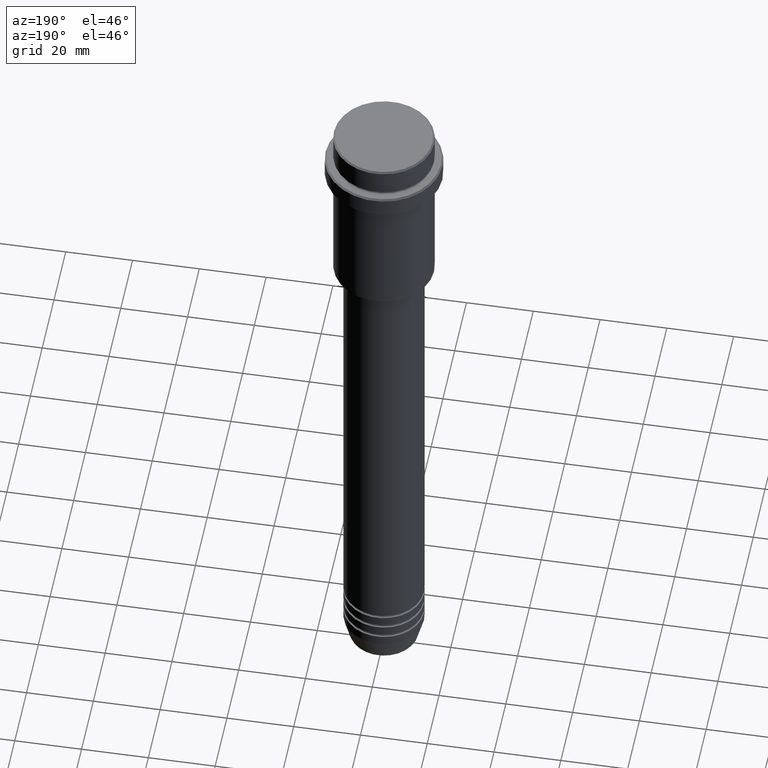
[diagram: clean part render]
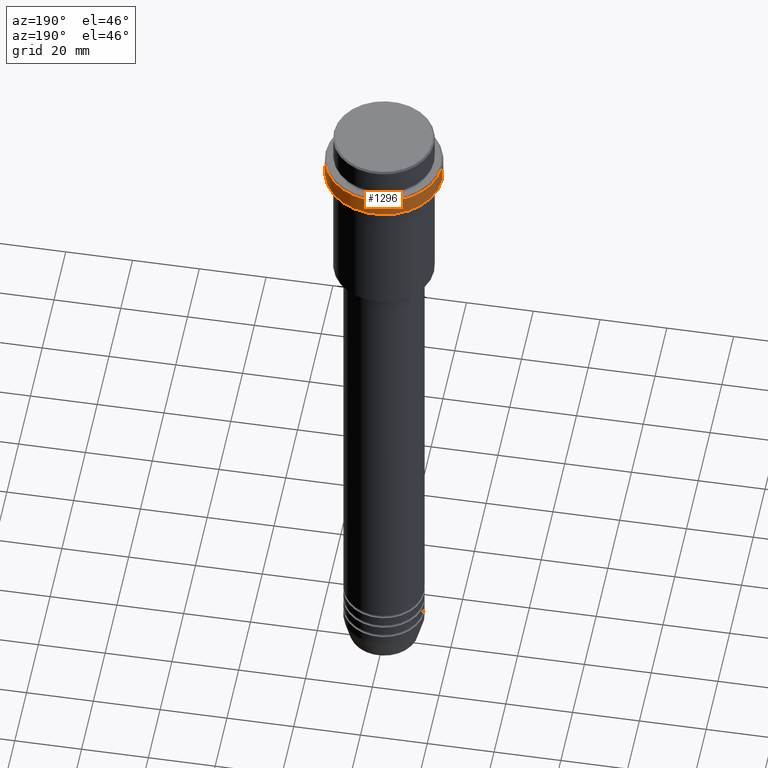
[diagram: same view with one face highlighted and labeled with its STEP entity id]
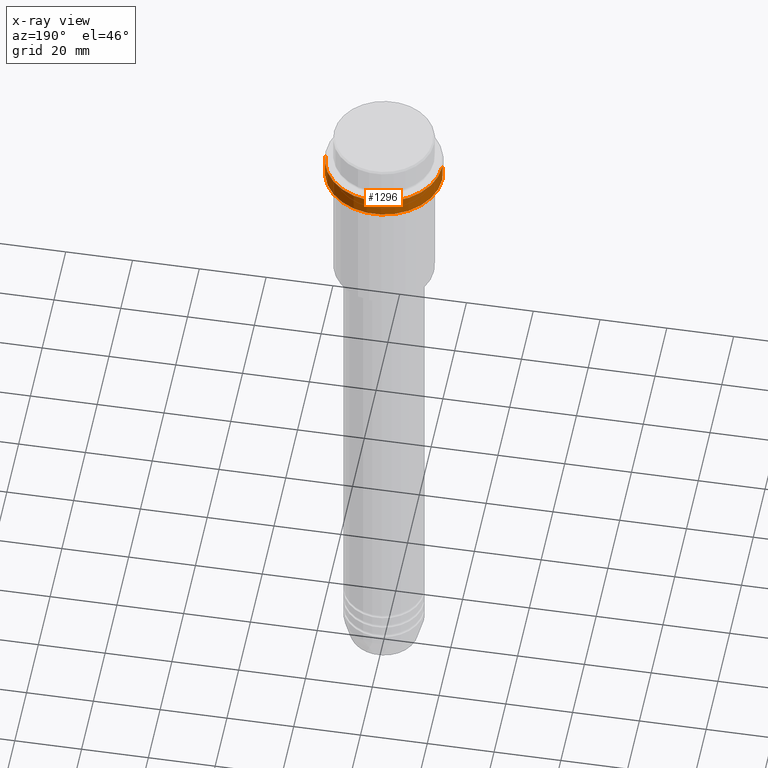
[diagram: x-ray of the same camera — body ghosted, the highlighted face saturated]
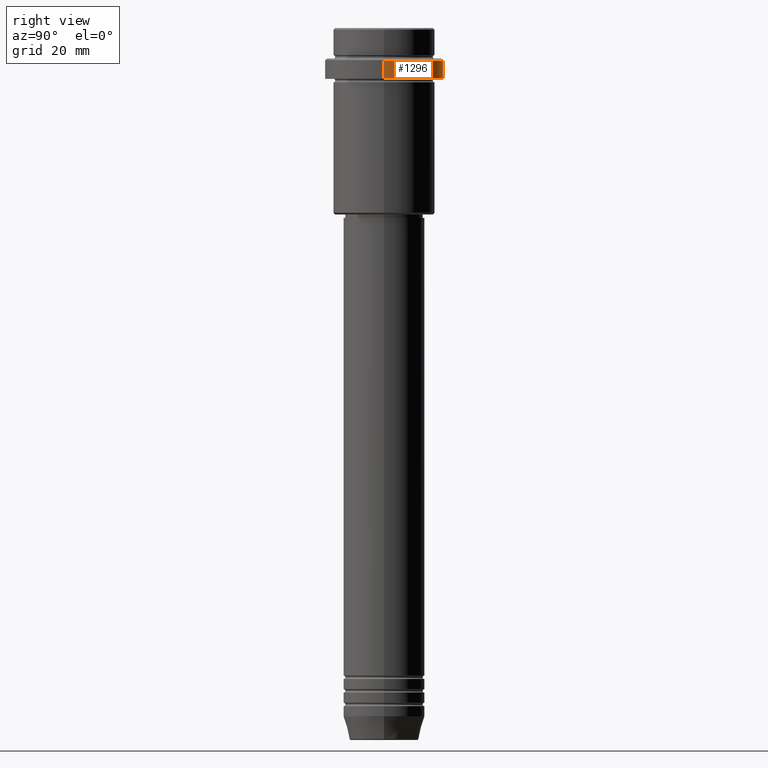
[diagram: same view with one face highlighted and labeled with its STEP entity id]
A machine part, auxiliary view. The second image highlights one B-rep face of the part: STEP entity #1296.
The next image is the same camera in x-ray: the body ghosted, the highlighted face saturated — about 0% of this face is hidden behind the body in this view.
A second angle (right view) of the same face is appended — the face is thin or edge-on in the first view.
In plain terms, the highlighted cylindrical surface (partial cylindrical patch) has radius 17.5 mm, axis along (-0, -0, 1).
Its self-contained STEP definition (entity closure, byte-faithful):
#85 = CARTESIAN_POINT ( 'NONE',  ( 17.50000000000000000, 0.000000000000000000, -15.00000000000000178 ) ) ;
#112 = CARTESIAN_POINT ( 'NONE',  ( -17.50000000000000000, 2.143131898507868248E-15, -9.500000000000028422 ) ) ;
#116 = FACE_OUTER_BOUND ( 'NONE', #993, .T. ) ;
#135 = ORIENTED_EDGE ( 'NONE', *, *, #939, .F. ) ;
#155 = VERTEX_POINT ( 'NONE', #1060 ) ;
#209 = DIRECTION ( 'NONE',  ( 1.000000000000000000, 0.000000000000000000, 0.000000000000000000 ) ) ;
#226 = LINE ( 'NONE', #572, #776 ) ;
#263 = CIRCLE ( 'NONE', #1408, 17.50000000000000000 ) ;
#315 = ORIENTED_EDGE ( 'NONE', *, *, #854, .T. ) ;
#432 = VERTEX_POINT ( 'NONE', #1364 ) ;
#524 = CYLINDRICAL_SURFACE ( 'NONE', #1217, 17.50000000000000000 ) ;
#535 = CARTESIAN_POINT ( 'NONE',  ( 0.000000000000000000, 0.000000000000000000, -9.500000000000028422 ) ) ;
#572 = CARTESIAN_POINT ( 'NONE',  ( -17.50000000000000000, 2.143131898507868248E-15, 0.000000000000000000 ) ) ;
#587 = LINE ( 'NONE', #1102, #1070 ) ;
#589 = DIRECTION ( 'NONE',  ( 1.000000000000000000, 0.000000000000000000, 0.000000000000000000 ) ) ;
#641 = EDGE_CURVE ( 'NONE', #155, #919, #226, .T. ) ;
#667 = DIRECTION ( 'NONE',  ( -0.000000000000000000, -0.000000000000000000, 1.000000000000000000 ) ) ;
#749 = CARTESIAN_POINT ( 'NONE',  ( 0.000000000000000000, 0.000000000000000000, 0.000000000000000000 ) ) ;
#776 = VECTOR ( 'NONE', #667, 1000.000000000000000 ) ;
#851 = DIRECTION ( 'NONE',  ( -0.000000000000000000, -0.000000000000000000, 1.000000000000000000 ) ) ;
#854 = EDGE_CURVE ( 'NONE', #896, #155, #884, .T. ) ;
#884 = CIRCLE ( 'NONE', #1141, 17.50000000000000000 ) ;
#896 = VERTEX_POINT ( 'NONE', #85 ) ;
#903 = DIRECTION ( 'NONE',  ( -0.000000000000000000, -0.000000000000000000, 1.000000000000000000 ) ) ;
#914 = DIRECTION ( 'NONE',  ( 0.000000000000000000, 0.000000000000000000, -1.000000000000000000 ) ) ;
#919 = VERTEX_POINT ( 'NONE', #112 ) ;
#939 = EDGE_CURVE ( 'NONE', #896, #432, #587, .T. ) ;
#993 = EDGE_LOOP ( 'NONE', ( #315, #1370, #1234, #135 ) ) ;
#1060 = CARTESIAN_POINT ( 'NONE',  ( -17.50000000000000000, 2.143131898507868248E-15, -15.00000000000000178 ) ) ;
#1070 = VECTOR ( 'NONE', #903, 1000.000000000000000 ) ;
#1102 = CARTESIAN_POINT ( 'NONE',  ( 17.50000000000000000, 0.000000000000000000, 0.000000000000000000 ) ) ;
#1141 = AXIS2_PLACEMENT_3D ( 'NONE', #1267, #1145, #1246 ) ;
#1145 = DIRECTION ( 'NONE',  ( -0.000000000000000000, -0.000000000000000000, 1.000000000000000000 ) ) ;
#1162 = EDGE_CURVE ( 'NONE', #919, #432, #263, .T. ) ;
#1217 = AXIS2_PLACEMENT_3D ( 'NONE', #749, #851, #209 ) ;
#1234 = ORIENTED_EDGE ( 'NONE', *, *, #1162, .T. ) ;
#1246 = DIRECTION ( 'NONE',  ( 1.000000000000000000, 0.000000000000000000, 0.000000000000000000 ) ) ;
#1267 = CARTESIAN_POINT ( 'NONE',  ( 0.000000000000000000, 0.000000000000000000, -15.00000000000000178 ) ) ;
#1296 = ADVANCED_FACE ( 'NONE', ( #116 ), #524, .T. ) ;
#1364 = CARTESIAN_POINT ( 'NONE',  ( 17.50000000000000000, 0.000000000000000000, -9.500000000000028422 ) ) ;
#1370 = ORIENTED_EDGE ( 'NONE', *, *, #641, .T. ) ;
#1408 = AXIS2_PLACEMENT_3D ( 'NONE', #535, #914, #589 ) ;